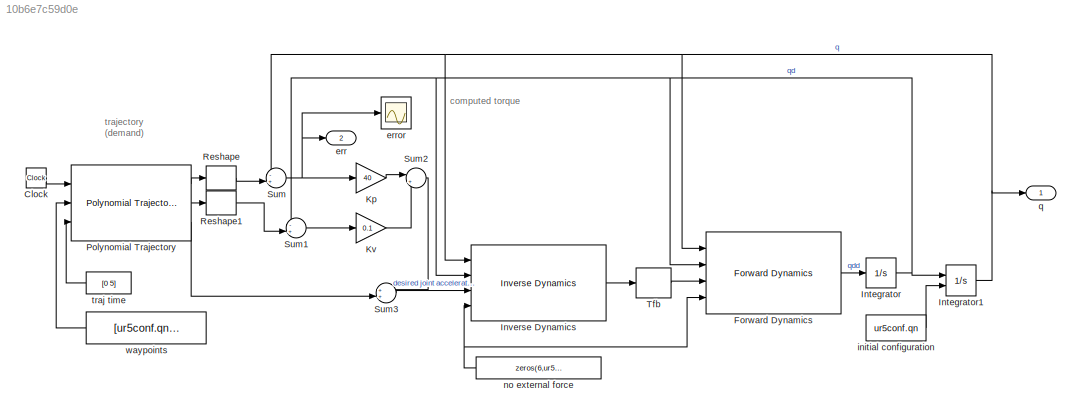
MODEL slx_10b6e7c59d0e
KIND model
CONFIG AbsTol = auto
CONFIG EnableMultiTasking = on
CONFIG FixedStep = 0.01
CONFIG InitFcn = if ~exist("ur5", "var")\n   ur5 = loadrobot("universalUR5e", DataFormat="row", Gravity=[0 0 -9.81]);\nend\n\nif ~exist("ur5conf", "var")\n  ur5conf.qn = [0 -1.07 1.38 -0.3 0 -2.3];\n  ur5conf.qe = [0.9765 -0.8013 0.9933 -0.2655 0.8590 -2.2322];\nend
CONFIG MaxStep = 0.05
CONFIG MinStep = auto
CONFIG PreLoadFcn = if ~exist("ur5", "var")\n   ur5 = loadrobot("universalUR5e", DataFormat="row", Gravity=[0 0 -9.81]);\nend\n\nif ~exist("ur5conf", "var")\n  ur5conf.qn = [0 -1.07 1.38 -0.3 0 -2.3];\n  ur5conf.qe = [0.9765 -0.8013 0.9933 -0.2655 0.8590 -2.2322];\nend
CONFIG RelTol = 1e-3
CONFIG SampleTimeConstraint = Unconstrained
CONFIG SolverName = ode23t
CONFIG StartTime = 0.0
CONFIG StopTime = 5
BLOCK [Clock] Clock
BLOCK [Reference] Forward Dynamics  REF=robotmaniplib/Forward Dynamics
  Ports = [4, 1]
  SourceBlock = robotmaniplib/Forward Dynamics
  SourceProductBaseCode = RO
  SourceType = Forward Dynamics
BLOCK [Integrator] Integrator
  Ports = [1, 1]
BLOCK [Integrator] Integrator1
  InitialConditionSource = external
  Ports = [2, 1]
BLOCK [Reference] Inverse Dynamics  REF=robotmaniplib/Inverse Dynamics
  Ports = [4, 1]
  SourceBlock = robotmaniplib/Inverse Dynamics
  SourceProductBaseCode = RO
  SourceType = Inverse Dynamics
BLOCK [Gain] Kp
  Gain = 40
  OutDataTypeStr = Inherit: Same as input
  ParamDataTypeStr = Inherit: Same as input
  SaturateOnIntegerOverflow = on
BLOCK [Gain] Kv
  Gain = 0.1
  OutDataTypeStr = Inherit: Same as input
  ParamDataTypeStr = Inherit: Same as input
  SaturateOnIntegerOverflow = on
BLOCK [Reference] Polynomial Trajectory  REF=robotcorelib/Polynomial Trajectory
  Ports = [3, 3]
  SourceBlock = robotcorelib/Polynomial Trajectory
  SourceProductBaseCode = RO,NV,RR,UV
  SourceType = robotics.slcore.internal.block.PolyTrajSys
BLOCK [Reshape] Reshape
  Ports = [1, 1]
BLOCK [Reshape] Reshape1
  Ports = [1, 1]
BLOCK [Sum] Sum
  InputSameDT = on
  Inputs = -+|
  OutDataTypeStr = Inherit: Same as first input
  Ports = [2, 1]
  SaturateOnIntegerOverflow = on
BLOCK [Sum] Sum1
  InputSameDT = on
  Inputs = -+|
  OutDataTypeStr = Inherit: Same as first input
  Ports = [2, 1]
  SaturateOnIntegerOverflow = on
BLOCK [Sum] Sum2
  InputSameDT = on
  Inputs = |++
  OutDataTypeStr = Inherit: Same as first input
  Ports = [2, 1]
  SaturateOnIntegerOverflow = on
BLOCK [Sum] Sum3
  InputSameDT = on
  Inputs = ++|
  OutDataTypeStr = Inherit: Same as first input
  Ports = [2, 1]
  SaturateOnIntegerOverflow = on
BLOCK [ZeroOrderHold] Tfb
  SampleTime = 0.005
BLOCK [Outport] err
  Port = 2
  VectorParamsAs1DForOutWhenUnconnected = off
BLOCK [Scope] error
  Floating = off
  NumInputPorts = 1
  Ports = [1]
  ScopeSpecificationString = Simulink.scopes.TimeScopeBlockCfg('CurrentConfiguration', extmgr.ConfigurationSet(extmgr.Configuration('Core','General UI',true),extmgr.Configuration('Core','Source UI',true),extmgr.Configuration('Sources','WiredSimulink',true,'DataLoggingVariableName','ScopeData1'),extmgr.Configuration('Visuals','Time Domain',true,'SerializedDisplays',{struct('MinYLimReal','-0.00111','MaxYLimReal','0.00099','YLab...<+1482ch>
BLOCK [Constant] initial configuration
  Value = ur5conf.qn
BLOCK [Constant] no external force
  Value = zeros(6,ur5.NumBodies)
BLOCK [Outport] q
  VectorParamsAs1DForOutWhenUnconnected = off
BLOCK [Constant] traj time
  Value = [0 5]
BLOCK [Constant] waypoints
  Value = [ur5conf.qn; \nur5conf.qe]'
ANNOTATION (root): trajectory (demand)
ANNOTATION (root): computed torque
LINE Clock:1 -> Polynomial Trajectory:1
LINE Forward Dynamics:1 -> Integrator:1
NET Integrator1:1 -> Forward Dynamics:1, Inverse Dynamics:1, Sum:1, q:1
NET Integrator:1 -> Forward Dynamics:2, Integrator1:1, Inverse Dynamics:2, Sum1:1
LINE Inverse Dynamics:1 -> Tfb:1
LINE Kp:1 -> Sum2:1
LINE Kv:1 -> Sum2:2
LINE Polynomial Trajectory:1 -> Reshape:1
LINE Polynomial Trajectory:2 -> Reshape1:1
LINE Polynomial Trajectory:3 -> Sum3:2
LINE Reshape1:1 -> Sum1:2
LINE Reshape:1 -> Sum:2
LINE Sum1:1 -> Kv:1
LINE Sum2:1 -> Sum3:1
LINE Sum3:1 -> Inverse Dynamics:3
NET Sum:1 -> Kp:1, err:1, error:1
LINE Tfb:1 -> Forward Dynamics:3
LINE initial configuration:1 -> Integrator1:2
NET no external force:1 -> Forward Dynamics:4, Inverse Dynamics:4
LINE traj time:1 -> Polynomial Trajectory:3
LINE waypoints:1 -> Polynomial Trajectory:2
note: NET lines group one-source signal fan-out (src -> all destinations, sorted); 1:1 wires keep LINE
